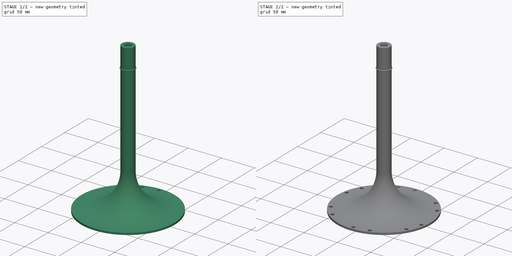
[diagram: build sequence overview — one tinted view per stage of 2, left to right]
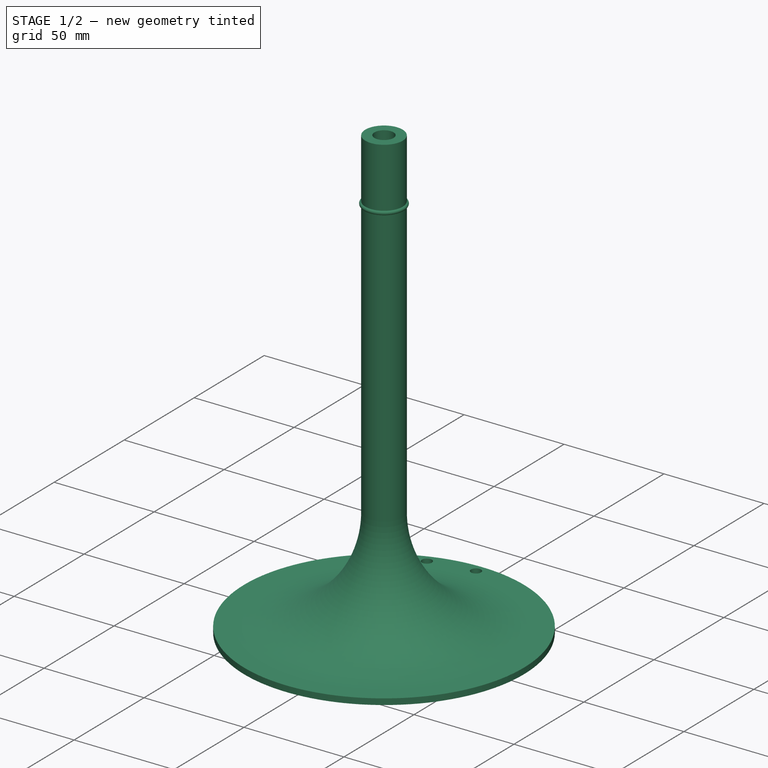
[diagram: stage 1 of 2 — iso view after this stage's code; geometry added in this stage tinted green]
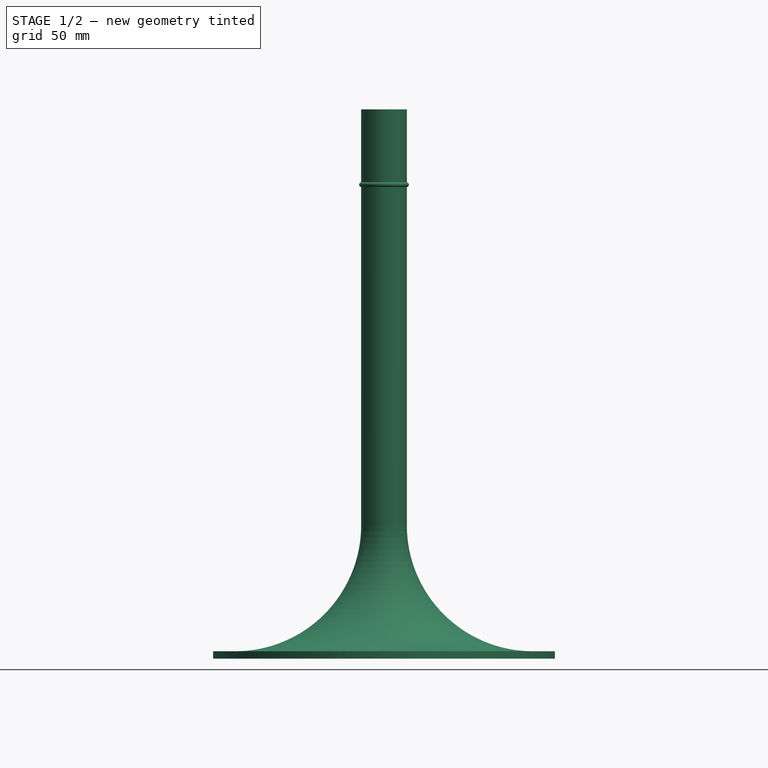
[diagram: stage 1 of 2 — front view after this stage's code; geometry added in this stage tinted green]
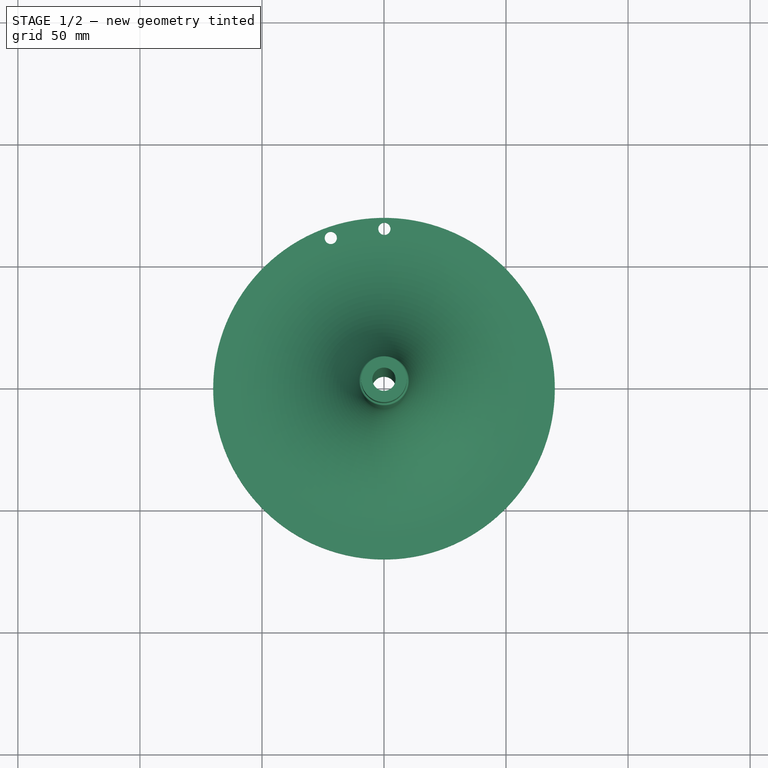
[diagram: stage 1 of 2 — top view after this stage's code; geometry added in this stage tinted green]
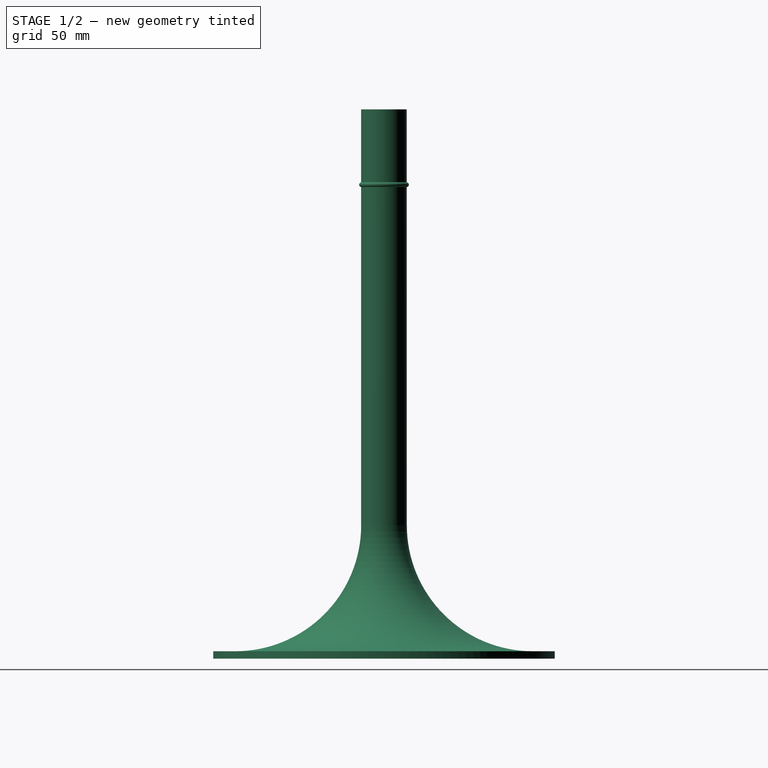
[diagram: stage 1 of 2 — right view after this stage's code; geometry added in this stage tinted green]
FCSTD DOCUMENT  (FreeCAD 0.18R16110 (Git))
Label: newhubshaft
License: All rights reserved
LicenseURL: http://en.wikipedia.org/wiki/All_rights_reserved
objects: Sketcher::SketchObject×2, Part::Revolution×1, PartDesign::Pocket×1, PartDesign::PolarPattern×1, PartDesign::Body×1
note: 7 computed .brp shape members not serialized (recipe doc carries the construction recipe); baked Part::Feature solids carry a one-line shape summary decoded from their .brp

FEATURE [Sketcher::SketchObject] Sketch
  Placement = pos=(0,0,0) rot=(1,0,0;1.5708rad)
  sketch-geometry (9):
    g0: LineSegment StartX=9.35 StartY=54.65 StartZ=0 EndX=9.35 EndY=193.2 EndZ=0
    g1: LineSegment StartX=9.35 StartY=225 StartZ=0 EndX=4.76 EndY=225 EndZ=0
    g2: LineSegment StartX=4.9 StartY=0 StartZ=0 EndX=70 EndY=0 EndZ=0
    g3: LineSegment StartX=70 StartY=0 StartZ=0 EndX=70 EndY=3 EndZ=0
    g4: LineSegment StartX=70 StartY=3 StartZ=0 EndX=61 EndY=3 EndZ=0
    g5: ArcOfCircle CenterX=61 CenterY=54.65 CenterZ=0 NormalX=0 NormalY=0 NormalZ=1 AngleXU=0 Radius=51.65 StartAngle=3.14159 EndAngle=4.71239
    g6: ArcOfCircle CenterX=9.20964 CenterY=194.18 CenterZ=0 NormalX=0 NormalY=0 NormalZ=1 AngleXU=0 Radius=0.99 StartAngle=4.85464 EndAngle=7.71173
    g7: LineSegment StartX=9.35 StartY=195.16 StartZ=0 EndX=9.35 EndY=225 EndZ=0
    g8: LineSegment StartX=4.76 StartY=225 StartZ=0 EndX=4.9 EndY=0 EndZ=0
  constraints (28):
    c: Vertical(g0)
    c: Coincident(g7,g1)
    c: Horizontal(g1)
    c: Horizontal(g2)
    c: Coincident(g2,g3)
    c: Vertical(g3)
    c: Coincident(g3,g4)
    c: Horizontal(g4)
    c: DistanceY(g3,g3) = 3
    c: Coincident(g5,g0)
    c: Coincident(g5,g4)
    c: Tangent(g0,g5) = 1.5708
    c: Tangent(g4,g5) = 1.5708
    c: DistanceX(g4,g4) = 9
    c: Tangent(g0,g7)
    c: Radius(g6) = 0.99
    c: DistanceY(g0) = 193.2
    c: DistanceY(g6) = 195.16
    c: Coincident(g6,g0)
    c: Coincident(g6,g7)
    c: DistanceX(g2) = 4.9
    c: DistanceX(g1) = 4.76
    c: Coincident(g8,g1)
    c: Coincident(g8,g2)
    c: DistanceX(g2) = 70
    c: DistanceY(g2) = 0
    c: DistanceX(g1,g1) = 4.59
    c: DistanceY(g8,g8) = 225
FEATURE [Part::Revolution] Revolve
  Angle = 360
  Axis = (0,0,1)
  Base = (0,0,0)
  FaceMakerClass = Part::FaceMakerBullseye
  Solid = true
  Source = -> Sketch
  Symmetric = false
FEATURE [Sketcher::SketchObject] Sketch001
  MapMode = 2
  Support = -> [Revolve]
  sketch-geometry (4):
    g0: Circle [constr] CenterX=0 CenterY=0 CenterZ=0 NormalX=0 NormalY=0 NormalZ=1 AngleXU=0 Radius=65.5
    g1: Circle CenterX=-21.8023 CenterY=61.765 CenterZ=0 NormalX=0 NormalY=0 NormalZ=1 AngleXU=0 Radius=2.5
    g2: Circle CenterX=0.162463 CenterY=65.4998 CenterZ=0 NormalX=0 NormalY=0 NormalZ=1 AngleXU=0 Radius=2.5
    g3: LineSegment [constr] StartX=-21.8023 StartY=61.765 StartZ=0 EndX=0.162463 EndY=65.4998 EndZ=0
  constraints (8):
    c: Radius(g0) = 65.5
    c: PointOnObject(g1,g0)
    c: Radius(g1) = 2.5
    c: PointOnObject(g2,g0)
    c: Coincident(g0,g-1)
    c: Coincident(g3,g1)
    c: Coincident(g3,g2)
    c: Distance(g3) = 22.28
FEATURE [PartDesign::Pocket] Pocket
  Length = 3
  Length2 = 100
  Profile = -> Sketch001
  Reversed = true
  Type = 0
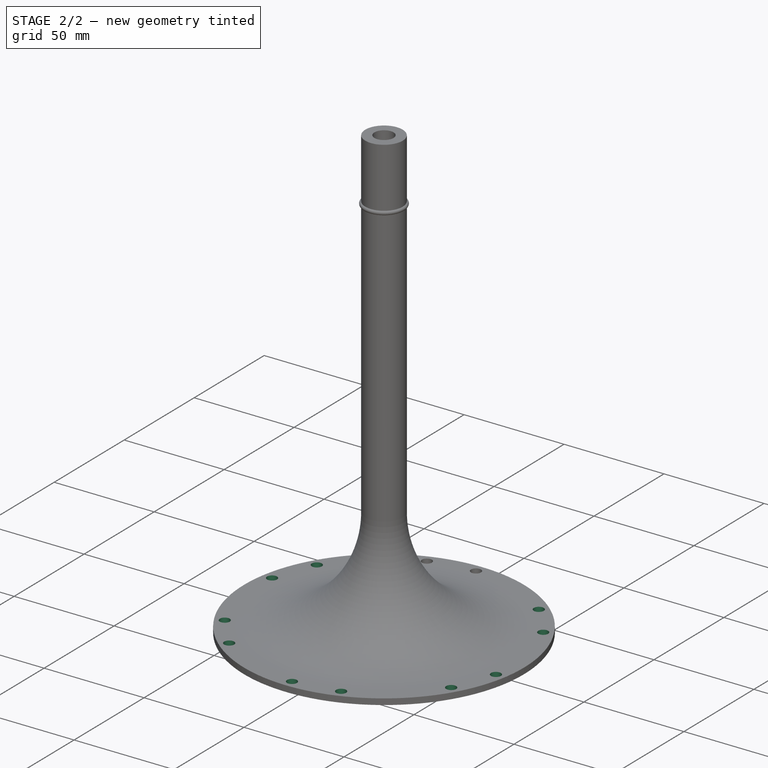
[diagram: stage 2 of 2 — iso view after this stage's code; geometry added in this stage tinted green]
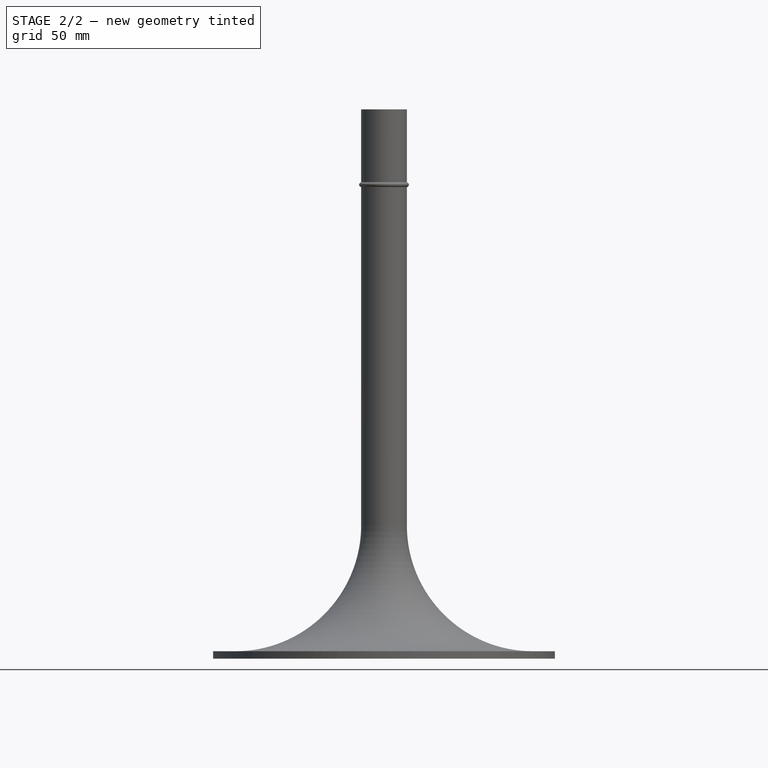
[diagram: stage 2 of 2 — front view after this stage's code; geometry added in this stage tinted green]
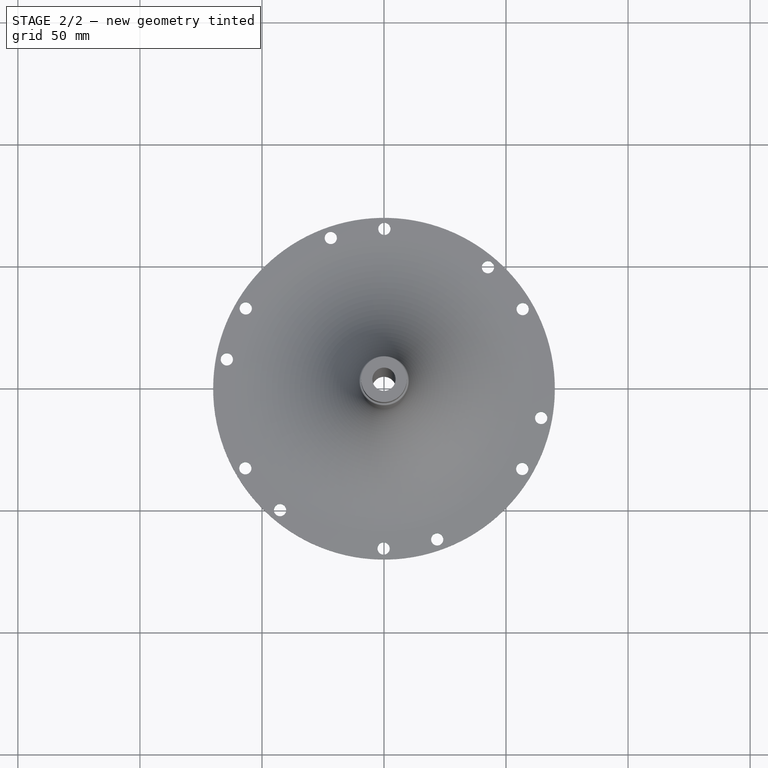
[diagram: stage 2 of 2 — top view after this stage's code; geometry added in this stage tinted green]
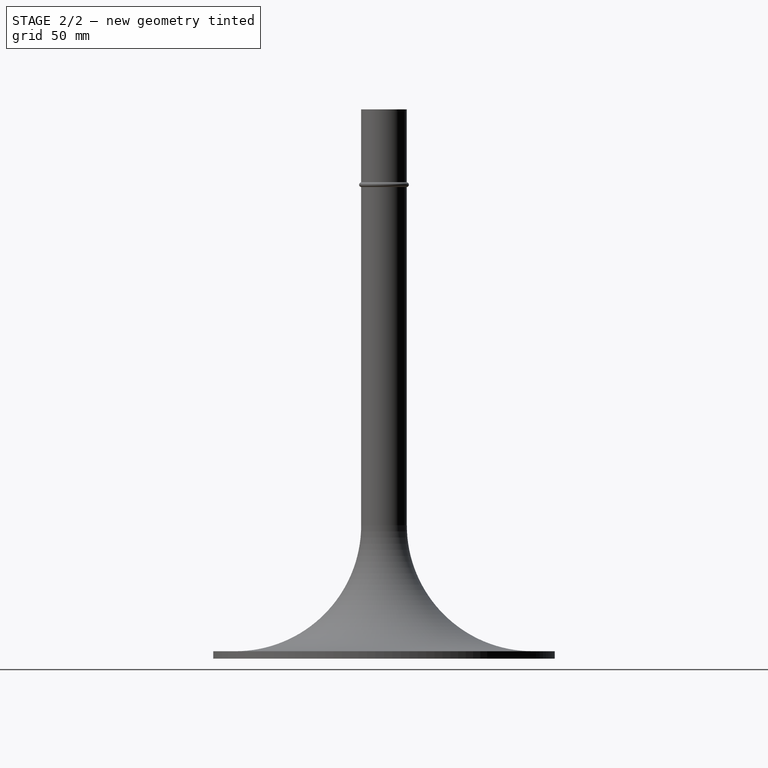
[diagram: stage 2 of 2 — right view after this stage's code; geometry added in this stage tinted green]
FEATURE [PartDesign::PolarPattern] PolarPattern
  Angle = 360
  Axis = -> Sketch001 [N_Axis]
  BaseFeature = -> Pocket
  Occurrences = 6
  Originals = -> [Pocket]
  Reversed = true
FEATURE [PartDesign::Body] Body
  Group = -> [Pocket,PolarPattern]
  Origin = -> Origin
  Tip = -> PolarPattern
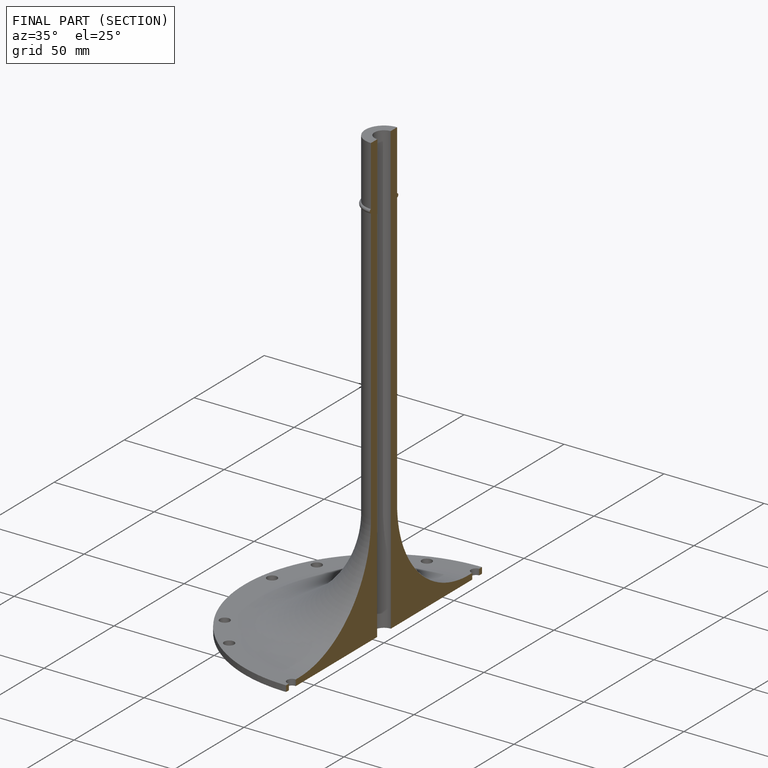
[diagram: finished part — half-section view (interior)]
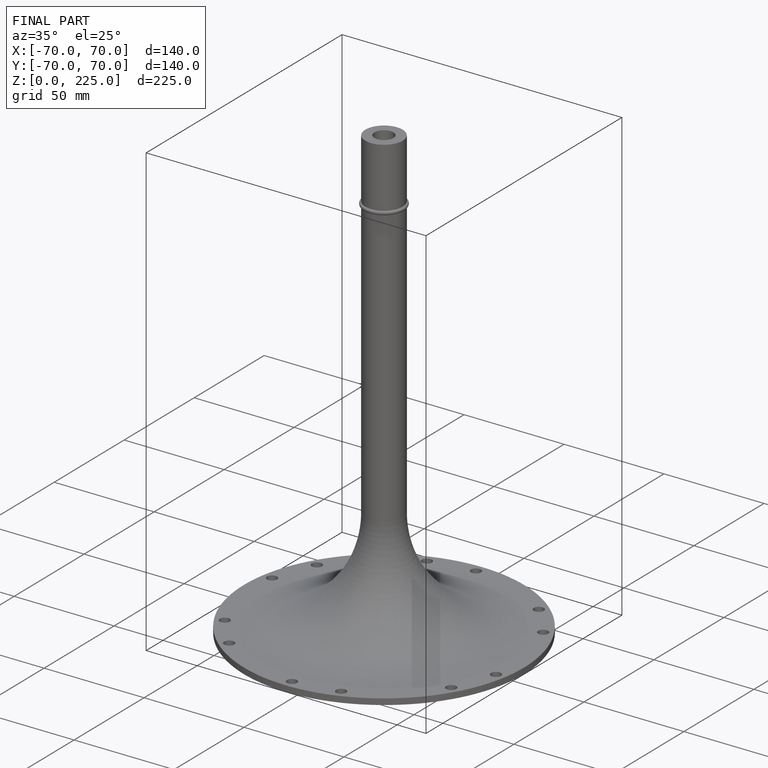
[diagram: finished part — iso view with bounding-box wireframe]
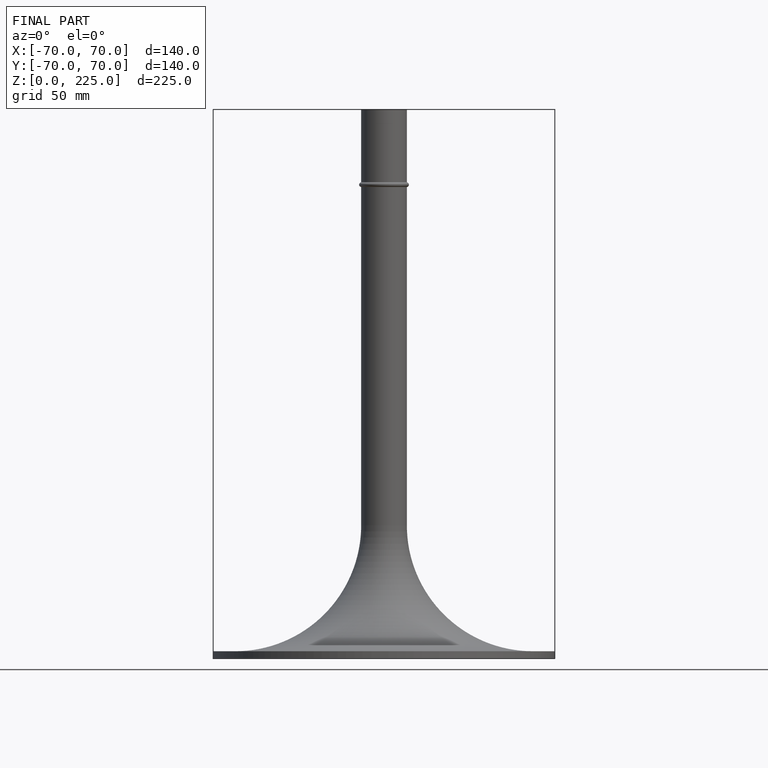
[diagram: finished part — front view with bounding-box wireframe]
